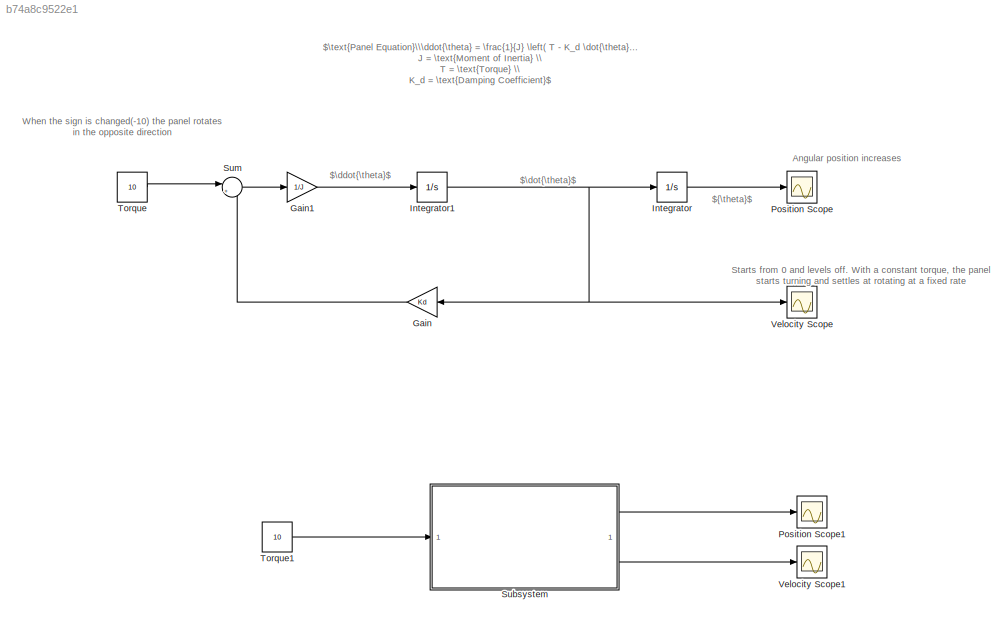
MODEL slx_b74a8c9522e1
KIND model
CONFIG AbsTol = auto
CONFIG EnableMultiTasking = off
CONFIG FixedStep = auto
CONFIG MaxStep = auto
CONFIG MinStep = auto
CONFIG RelTol = 1e-3
CONFIG SampleTimeConstraint = Unconstrained
CONFIG SolverName = VariableStepAuto
CONFIG StartTime = 0.0
CONFIG StopTime = 10.0
WORKSPACE source: mxarray member
WORKSPACE J = 8.6
WORKSPACE Kd = 5
BLOCK [Gain] Gain
  Gain = Kd
BLOCK [Gain] Gain1
  Gain = 1/J
BLOCK [Integrator] Integrator
BLOCK [Integrator] Integrator1
BLOCK [Scope] Position Scope
  Floating = off
  NumInputPorts = 1
  ScopeSpecificationString = Simulink.scopes.TimeScopeBlockCfg('CurrentConfiguration', extmgr.ConfigurationSet(extmgr.Configuration('Core','General UI',true),extmgr.Configuration('Core','Source UI',true),extmgr.Configuration('Sources','WiredSimulink',true),extmgr.Configuration('Visuals','Time Domain',true,'SerializedDisplays',{struct('MinYLimReal','-2.07128','MaxYLimReal','18.64155','YLabelReal','','MinYLimMag','0.00000','Max...<+1334ch>
BLOCK [Scope] Position Scope1
  Floating = off
  NumInputPorts = 1
  ScopeSpecificationString = Simulink.scopes.TimeScopeBlockCfg('CurrentConfiguration', extmgr.ConfigurationSet(extmgr.Configuration('Core','General UI',true),extmgr.Configuration('Core','Source UI',true),extmgr.Configuration('Sources','WiredSimulink',true,'DataLoggingVariableName','ScopeData2'),extmgr.Configuration('Visuals','Time Domain',true,'SerializedDisplays',{struct('MinYLimReal','-2.07128','MaxYLimReal','18.64155','YLa...<+1373ch>
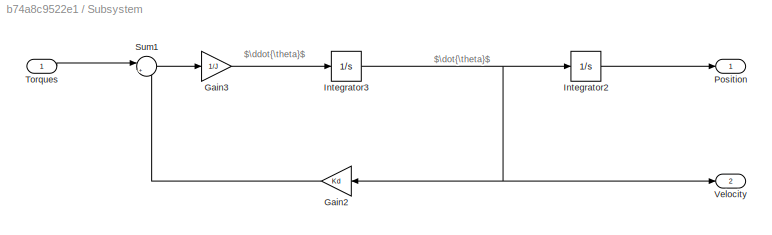
BLOCK [SubSystem] Subsystem
BLOCK [Gain] Subsystem/Gain2
  Gain = Kd
BLOCK [Gain] Subsystem/Gain3
  Gain = 1/J
BLOCK [Integrator] Subsystem/Integrator2
BLOCK [Integrator] Subsystem/Integrator3
BLOCK [Outport] Subsystem/Position
BLOCK [Sum] Subsystem/Sum1
  Inputs = |+-
BLOCK [Inport] Subsystem/Torques
BLOCK [Outport] Subsystem/Velocity
  Port = 2
BLOCK [Sum] Sum
  Inputs = |+-
BLOCK [Constant] Torque
  Value = 10
BLOCK [Constant] Torque1
  Value = 10
BLOCK [Scope] Velocity Scope
  Floating = off
  NumInputPorts = 1
  ScopeSpecificationString = Simulink.scopes.TimeScopeBlockCfg('CurrentConfiguration', extmgr.ConfigurationSet(extmgr.Configuration('Core','General UI',true),extmgr.Configuration('Core','Source UI',true),extmgr.Configuration('Sources','WiredSimulink',true,'DataLoggingVariableName','ScopeData1'),extmgr.Configuration('Visuals','Time Domain',true,'SerializedDisplays',{struct('MinYLimReal','-0.24925','MaxYLimReal','2.24328','YLab...<+1370ch>
BLOCK [Scope] Velocity Scope1
  Floating = off
  NumInputPorts = 1
  ScopeSpecificationString = Simulink.scopes.TimeScopeBlockCfg('CurrentConfiguration', extmgr.ConfigurationSet(extmgr.Configuration('Core','General UI',true),extmgr.Configuration('Core','Source UI',true),extmgr.Configuration('Sources','WiredSimulink',true,'DataLoggingVariableName','ScopeData3'),extmgr.Configuration('Visuals','Time Domain',true,'SerializedDisplays',{struct('MinYLimReal','-0.24925','MaxYLimReal','2.24328','YLab...<+1370ch>
ANNOTATION (root): $\ddot{\theta}$
ANNOTATION (root): $\dot{\theta}$
ANNOTATION (root): $\text{Panel Equation}\\\ddot{\theta} = \frac{1}{J} \left( T - K_d \dot{\theta} \right)\\\text{Where} \\ J = \text{Moment of Inertia} \\ T = \text{Torque} \\ K_d = \text{Damping Coefficient}$
ANNOTATION (root): ${\theta}$
ANNOTATION (root): Angular position increases
ANNOTATION (root): Starts from 0 and levels off. With a constant torque, the panel starts turning and settles at rotating at a fixed rate
ANNOTATION (root): When the sign is changed(-10) the panel rotates in the opposite direction
ANNOTATION Subsystem: $\ddot{\theta}$
ANNOTATION Subsystem: $\dot{\theta}$
LINE Gain1:1 -> Integrator1:1
LINE Gain:1 -> Sum:2
NET Integrator1:1 -> Gain:1, Integrator:1, Velocity Scope:1
LINE Integrator:1 -> Position Scope:1
LINE Subsystem/Gain2:1 -> Subsystem/Sum1:2
LINE Subsystem/Gain3:1 -> Subsystem/Integrator3:1
LINE Subsystem/Integrator2:1 -> Subsystem/Position:1
NET Subsystem/Integrator3:1 -> Subsystem/Gain2:1, Subsystem/Integrator2:1, Subsystem/Velocity:1
LINE Subsystem/Sum1:1 -> Subsystem/Gain3:1
LINE Subsystem/Torques:1 -> Subsystem/Sum1:1
LINE Subsystem:1 -> Position Scope1:1
LINE Subsystem:2 -> Velocity Scope1:1
LINE Sum:1 -> Gain1:1
LINE Torque1:1 -> Subsystem:1
LINE Torque:1 -> Sum:1
note: NET lines group one-source signal fan-out (src -> all destinations, sorted); 1:1 wires keep LINE
